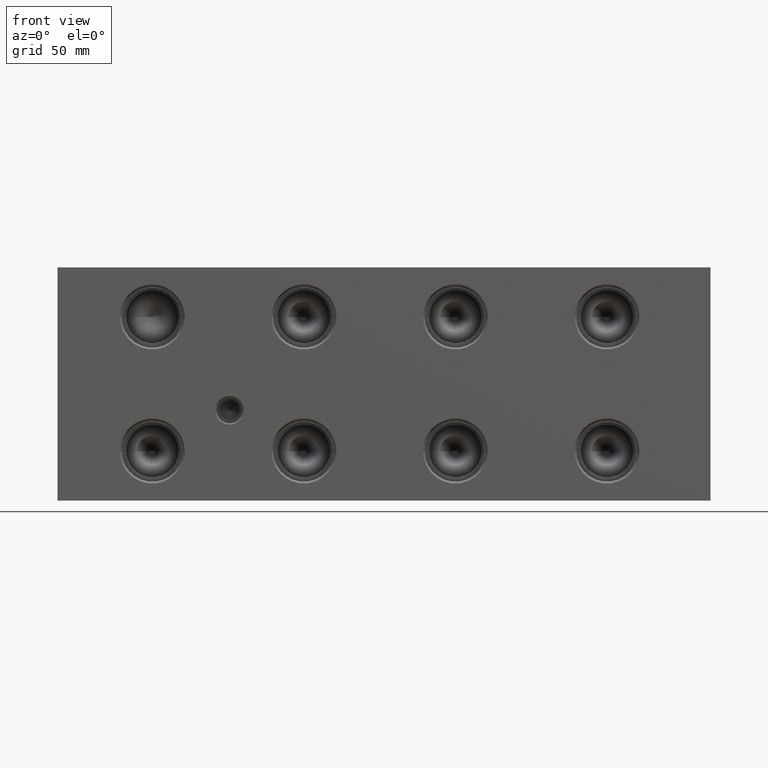
[diagram: clean part render]
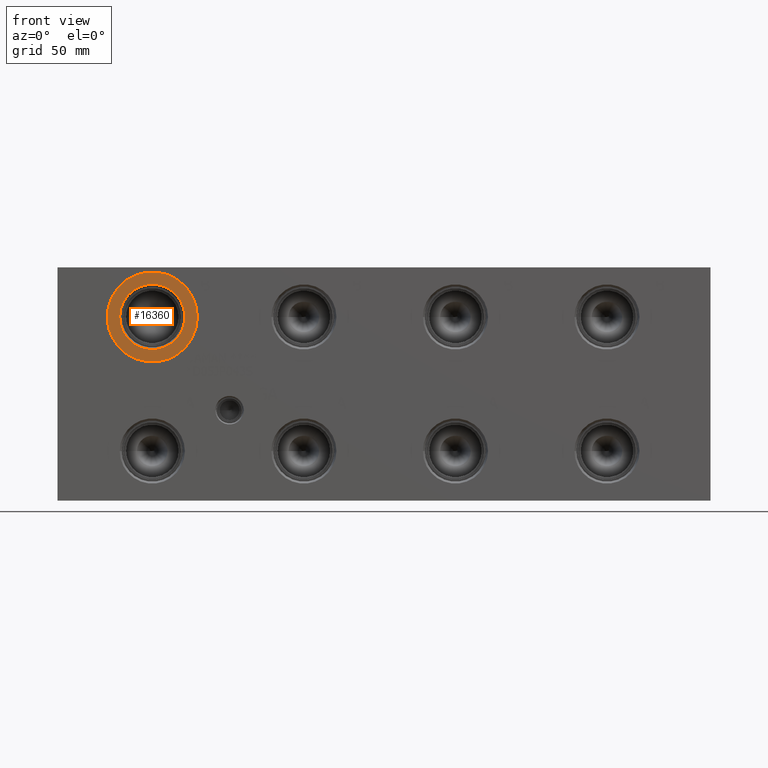
[diagram: same view with one face highlighted and labeled with its STEP entity id]
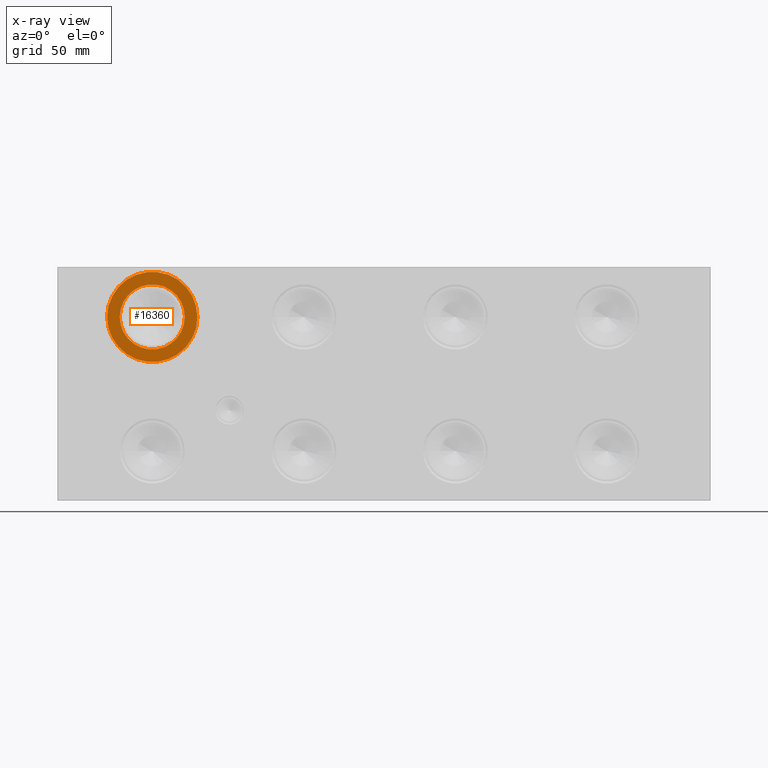
[diagram: x-ray of the same camera — body ghosted, the highlighted face saturated]
A machine part, front view. The second image highlights one B-rep face of the part: STEP entity #16360.
The next image is the same camera in x-ray: the body ghosted, the highlighted face saturated — about 0% of this face is hidden behind the body in this view.
In plain terms, the highlighted planar face has unit normal (0, 1, 0).
Its self-contained STEP definition (entity closure, byte-faithful):
#517=CIRCLE('',#17314,24.5618);
#518=CIRCLE('',#17315,24.5618);
#519=CIRCLE('',#17317,17.7546);
#520=CIRCLE('',#17318,17.7546);
#832=FACE_BOUND('',#3154,.T.);
#2190=FACE_OUTER_BOUND('',#3153,.T.);
#3153=EDGE_LOOP('',(#13978,#13979));
#3154=EDGE_LOOP('',(#13980,#13981));
#7519=VERTEX_POINT('',#27867);
#7520=VERTEX_POINT('',#27869);
#7521=VERTEX_POINT('',#27873);
#7522=VERTEX_POINT('',#27874);
#9742=EDGE_CURVE('',#7519,#7520,#517,.T.);
#9743=EDGE_CURVE('',#7520,#7519,#518,.T.);
#9744=EDGE_CURVE('',#7521,#7522,#519,.T.);
#9745=EDGE_CURVE('',#7522,#7521,#520,.T.);
#13978=ORIENTED_EDGE('',*,*,#9743,.F.);
#13979=ORIENTED_EDGE('',*,*,#9742,.F.);
#13980=ORIENTED_EDGE('',*,*,#9744,.T.);
#13981=ORIENTED_EDGE('',*,*,#9745,.T.);
#15045=PLANE('',#17316);
#16360=ADVANCED_FACE('',(#2190,#832),#15045,.F.);
#17314=AXIS2_PLACEMENT_3D('',#27870,#20623,#20624);
#17315=AXIS2_PLACEMENT_3D('',#27871,#20625,#20626);
#17316=AXIS2_PLACEMENT_3D('',#27872,#20627,#20628);
#17317=AXIS2_PLACEMENT_3D('',#27875,#20629,#20630);
#17318=AXIS2_PLACEMENT_3D('',#27876,#20631,#20632);
#20623=DIRECTION('center_axis',(0.,1.,0.));
#20624=DIRECTION('ref_axis',(1.,0.,0.));
#20625=DIRECTION('center_axis',(0.,1.,0.));
#20626=DIRECTION('ref_axis',(1.,0.,0.));
#20627=DIRECTION('center_axis',(0.,1.,0.));
#20628=DIRECTION('ref_axis',(0.,0.,1.));
#20629=DIRECTION('center_axis',(0.,1.,0.));
#20630=DIRECTION('ref_axis',(1.,0.,0.));
#20631=DIRECTION('center_axis',(0.,1.,0.));
#20632=DIRECTION('ref_axis',(1.,0.,0.));
#27867=CARTESIAN_POINT('',(27.0256,0.7874,100.0252));
#27869=CARTESIAN_POINT('',(76.1492,0.7874,100.0252));
#27870=CARTESIAN_POINT('Origin',(51.5874,0.7874,100.0252));
#27871=CARTESIAN_POINT('Origin',(51.5874,0.7874,100.0252));
#27872=CARTESIAN_POINT('Origin',(69.342,0.7874,100.0252));
#27873=CARTESIAN_POINT('',(69.342,0.7874,100.0252));
#27874=CARTESIAN_POINT('',(33.8328,0.787399999999998,100.0252));
#27875=CARTESIAN_POINT('Origin',(51.5874,0.7874,100.0252));
#27876=CARTESIAN_POINT('Origin',(51.5874,0.7874,100.0252));